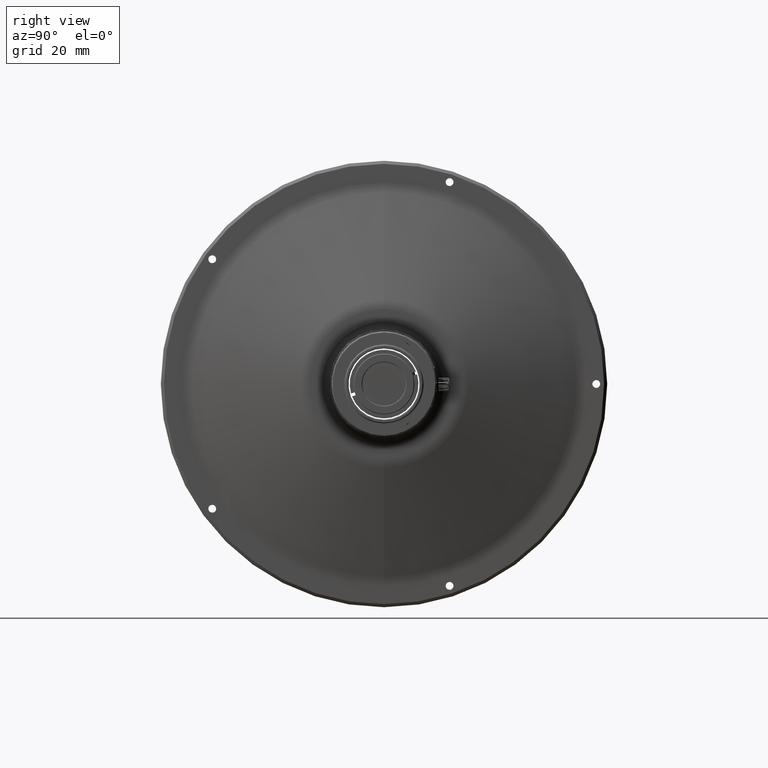
[diagram: clean part render]
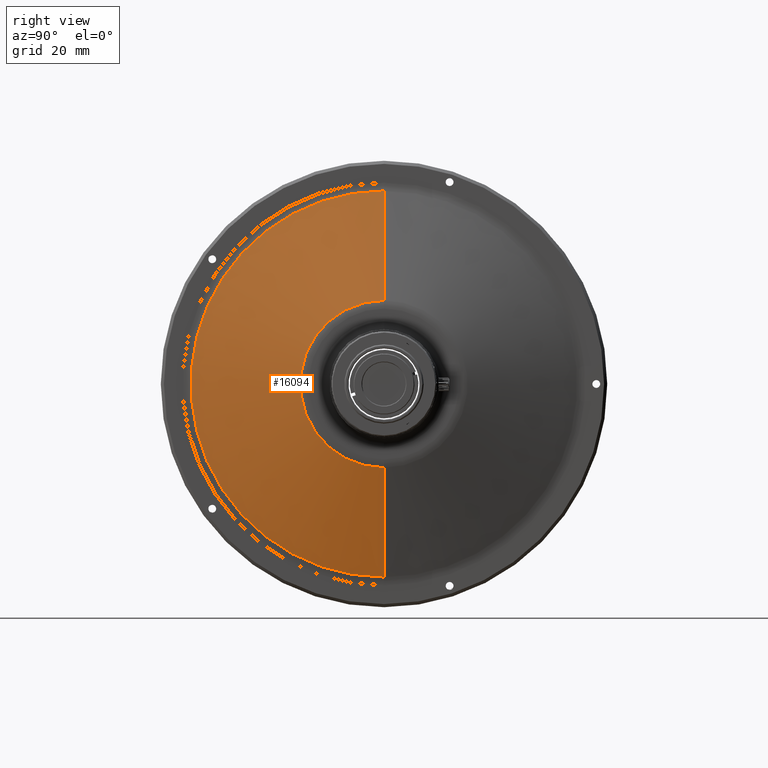
[diagram: same view with one face highlighted and labeled with its STEP entity id]
A machine part, right view. The second image highlights one B-rep face of the part: STEP entity #16094.
In plain terms, the highlighted conical surface has half-angle 74.607 deg.
Its self-contained STEP definition (entity closure, byte-faithful):
#91 = VERTEX_POINT ( 'NONE', #9479 ) ;
#373 = AXIS2_PLACEMENT_3D ( 'NONE', #28687, #10653, #5278 ) ;
#1716 = DIRECTION ( 'NONE',  ( -1.000000000000000000, -0.0000000000000000000, -0.0000000000000000000 ) ) ;
#2051 = DIRECTION ( 'NONE',  ( 0.0000000000000000000, 0.0000000000000000000, 1.000000000000000000 ) ) ;
#2846 = VERTEX_POINT ( 'NONE', #13378 ) ;
#3083 = CARTESIAN_POINT ( 'NONE',  ( 4.438426417551877279, 3.282414752196981523E-15, -26.80295048729418639 ) ) ;
#3599 = CARTESIAN_POINT ( 'NONE',  ( -5.209312324654269410, 0.0000000000000000000, 61.84562048899351794 ) ) ;
#4593 = CARTESIAN_POINT ( 'NONE',  ( 4.438426417551877279, 0.0000000000000000000, 0.0000000000000000000 ) ) ;
#4692 = AXIS2_PLACEMENT_3D ( 'NONE', #4593, #1716, #2051 ) ;
#4955 = ORIENTED_EDGE ( 'NONE', *, *, #13629, .F. ) ;
#5133 = DIRECTION ( 'NONE',  ( 0.0000000000000000000, 0.0000000000000000000, 1.000000000000000000 ) ) ;
#5278 = DIRECTION ( 'NONE',  ( 0.0000000000000000000, 0.0000000000000000000, 1.000000000000000000 ) ) ;
#5777 = DIRECTION ( 'NONE',  ( -0.2654379511006480508, 1.180716201676577844E-16, -0.9641279448887942749 ) ) ;
#7597 = CARTESIAN_POINT ( 'NONE',  ( 4.438426417551876391, 3.282414752196979551E-15, -26.80295048729416862 ) ) ;
#7957 = LINE ( 'NONE', #18241, #29303 ) ;
#9479 = CARTESIAN_POINT ( 'NONE',  ( -5.209312324654269410, 7.573904117312788237E-15, -61.84562048899351794 ) ) ;
#10653 = DIRECTION ( 'NONE',  ( -1.000000000000000000, -0.0000000000000000000, -0.0000000000000000000 ) ) ;
#11123 = EDGE_CURVE ( 'NONE', #91, #27335, #14152, .T. ) ;
#12100 = ORIENTED_EDGE ( 'NONE', *, *, #15764, .T. ) ;
#12643 = VECTOR ( 'NONE', #5777, 999.9999999999998863 ) ;
#13056 = AXIS2_PLACEMENT_3D ( 'NONE', #26030, #20977, #5133 ) ;
#13203 = ORIENTED_EDGE ( 'NONE', *, *, #24758, .T. ) ;
#13378 = CARTESIAN_POINT ( 'NONE',  ( 4.438426417551876391, 0.0000000000000000000, 26.80295048729416862 ) ) ;
#13629 = EDGE_CURVE ( 'NONE', #19186, #91, #18081, .T. ) ;
#14152 = CIRCLE ( 'NONE', #13056, 61.84562048899351794 ) ;
#14529 = FACE_OUTER_BOUND ( 'NONE', #18016, .T. ) ;
#15764 = EDGE_CURVE ( 'NONE', #19186, #2846, #29984, .T. ) ;
#16094 = ADVANCED_FACE ( 'NONE', ( #14529 ), #20815, .T. ) ;
#18016 = EDGE_LOOP ( 'NONE', ( #4955, #12100, #13203, #25970 ) ) ;
#18081 = LINE ( 'NONE', #3083, #12643 ) ;
#18241 = CARTESIAN_POINT ( 'NONE',  ( 4.438426417551877279, 0.0000000000000000000, 26.80295048729418639 ) ) ;
#19186 = VERTEX_POINT ( 'NONE', #7597 ) ;
#20815 = CONICAL_SURFACE ( 'NONE', #4692, 26.80295048729418639, 1.302138187027827687 ) ;
#20977 = DIRECTION ( 'NONE',  ( -1.000000000000000000, -0.0000000000000000000, -0.0000000000000000000 ) ) ;
#23464 = DIRECTION ( 'NONE',  ( -0.2654379511006480508, 0.0000000000000000000, 0.9641279448887942749 ) ) ;
#24758 = EDGE_CURVE ( 'NONE', #2846, #27335, #7957, .T. ) ;
#25970 = ORIENTED_EDGE ( 'NONE', *, *, #11123, .F. ) ;
#26030 = CARTESIAN_POINT ( 'NONE',  ( -5.209312324654269410, 0.0000000000000000000, 0.0000000000000000000 ) ) ;
#27335 = VERTEX_POINT ( 'NONE', #3599 ) ;
#28687 = CARTESIAN_POINT ( 'NONE',  ( 4.438426417551877279, 0.0000000000000000000, 0.0000000000000000000 ) ) ;
#29303 = VECTOR ( 'NONE', #23464, 999.9999999999998863 ) ;
#29984 = CIRCLE ( 'NONE', #373, 26.80295048729418639 ) ;